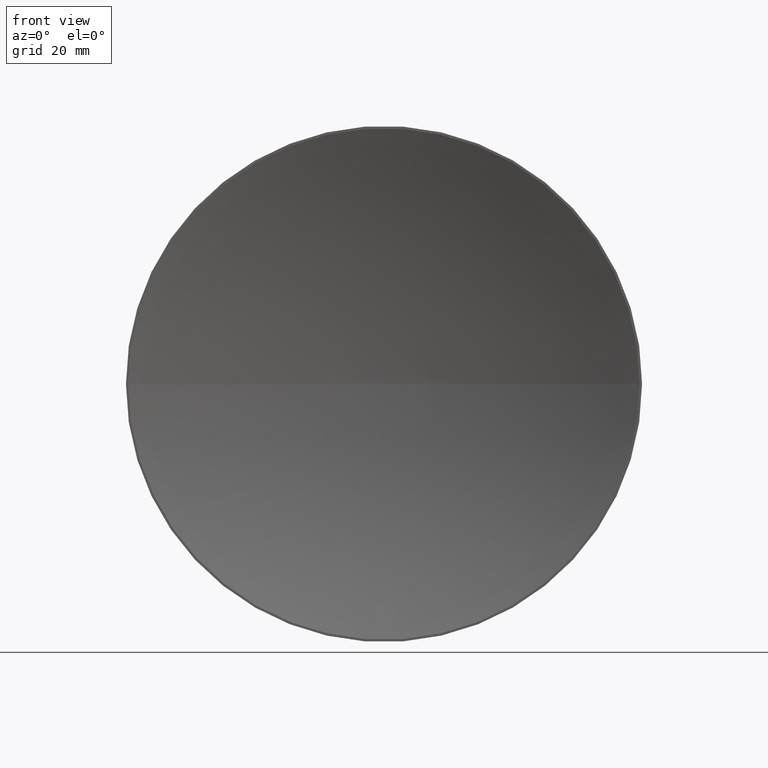
[diagram: clean part render]
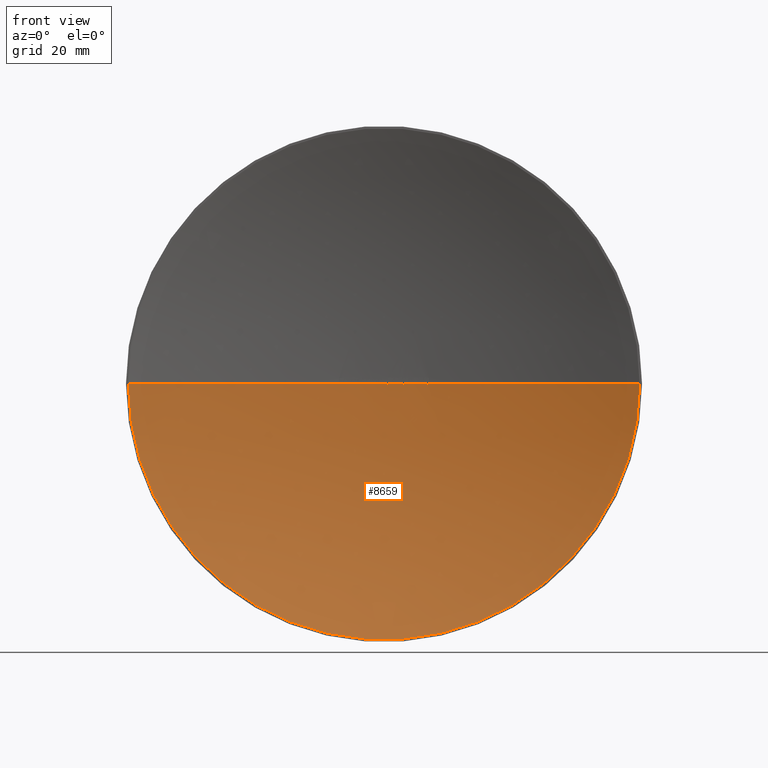
[diagram: same view with one face highlighted and labeled with its STEP entity id]
A machine part, front view. The second image highlights one B-rep face of the part: STEP entity #8659.
In plain terms, the highlighted spherical surface has radius 138.073 mm.
Its self-contained STEP definition (entity closure, byte-faithful):
#18 = EDGE_CURVE ( 'NONE', #8725, #9429, #7078, .T. ) ;
#40 = DIRECTION ( 'NONE',  ( -1.224646799147353200E-016, 1.572626006376126000E-030, -1.000000000000000000 ) ) ;
#72 = EDGE_CURVE ( 'NONE', #10570, #8725, #1821, .T. ) ;
#91 = EDGE_CURVE ( 'NONE', #581, #5924, #8259, .T. ) ;
#129 = CARTESIAN_POINT ( 'NONE',  ( -6.034217247596128400, 9.368079107024890100, -0.01696047008546980300 ) ) ;
#147 = CARTESIAN_POINT ( 'NONE',  ( -7.752102154570927400, 9.282207644704310900, -4.015956613138966300E-007 ) ) ;
#151 = VERTEX_POINT ( 'NONE', #851 ) ;
#155 = ORIENTED_EDGE ( 'NONE', *, *, #7688, .T. ) ;
#156 = EDGE_CURVE ( 'NONE', #562, #4516, #11256, .T. ) ;
#157 = DIRECTION ( 'NONE',  ( 1.000000000000000000, 0.0000000000000000000, 0.0000000000000000000 ) ) ;
#187 = ORIENTED_EDGE ( 'NONE', *, *, #91, .T. ) ;
#254 = DIRECTION ( 'NONE',  ( 0.0000000000000000000, -0.0000000000000000000, 1.000000000000000000 ) ) ;
#289 = CARTESIAN_POINT ( 'NONE',  ( 3.210366465398499500E-014, -128.5731578947367700, 0.0000000000000000000 ) ) ;
#362 = CARTESIAN_POINT ( 'NONE',  ( 3.987755027442126700, 9.442411135812641000, -0.02261620852415193600 ) ) ;
#389 = EDGE_CURVE ( 'NONE', #4809, #10654, #6879, .T. ) ;
#452 = CARTESIAN_POINT ( 'NONE',  ( 3.210366465398499500E-014, -128.5731578947367700, 0.0000000000000000000 ) ) ;
#458 = CARTESIAN_POINT ( 'NONE',  ( -7.563974066267319600, 9.292657634017135800, -0.01529844730456529300 ) ) ;
#485 = CARTESIAN_POINT ( 'NONE',  ( -0.4324919871794671300, 9.499322642501139700, 0.0000000000000000000 ) ) ;
#497 = AXIS2_PLACEMENT_3D ( 'NONE', #3449, #4421, #7080 ) ;
#536 = DIRECTION ( 'NONE',  ( 0.0000000000000000000, 0.0000000000000000000, 1.000000000000000000 ) ) ;
#562 = VERTEX_POINT ( 'NONE', #2130 ) ;
#575 = DIRECTION ( 'NONE',  ( 0.0000000000000000000, -0.0000000000000000000, 1.000000000000000000 ) ) ;
#581 = VERTEX_POINT ( 'NONE', #8273 ) ;
#586 = VERTEX_POINT ( 'NONE', #10116 ) ;
#610 = DIRECTION ( 'NONE',  ( 1.000000000000000000, 0.0000000000000000000, 0.0000000000000000000 ) ) ;
#644 = EDGE_CURVE ( 'NONE', #2306, #3632, #3284, .T. ) ;
#674 = AXIS2_PLACEMENT_3D ( 'NONE', #5874, #9502, #9538 ) ;
#707 = DIRECTION ( 'NONE',  ( 0.0000000000000000000, 0.0000000000000000000, 1.000000000000000000 ) ) ;
#716 = ORIENTED_EDGE ( 'NONE', *, *, #10583, .T. ) ;
#729 = VERTEX_POINT ( 'NONE', #3948 ) ;
#770 = ORIENTED_EDGE ( 'NONE', *, *, #72, .T. ) ;
#799 = ORIENTED_EDGE ( 'NONE', *, *, #11591, .F. ) ;
#813 = CARTESIAN_POINT ( 'NONE',  ( 0.6348561549889223400, 9.498540430880071400, 8.337528731570287300E-006 ) ) ;
#836 = ORIENTED_EDGE ( 'NONE', *, *, #2015, .T. ) ;
#845 = CARTESIAN_POINT ( 'NONE',  ( 3.210366465398499500E-014, -128.5731578947367700, 0.0000000000000000000 ) ) ;
#851 = CARTESIAN_POINT ( 'NONE',  ( 0.9897538563598540200, 9.496452488122402600, -9.316555049733528400E-007 ) ) ;
#973 = DIRECTION ( 'NONE',  ( -1.000000000000000000, 0.0000000000000000000, 1.224646799147353000E-016 ) ) ;
#974 = CARTESIAN_POINT ( 'NONE',  ( 0.6866693541507686800, 9.498294371290372200, -0.01999444933928770000 ) ) ;
#1014 = CARTESIAN_POINT ( 'NONE',  ( 8.557882194845118900, 9.234528511841734400, -0.03392094017094066800 ) ) ;
#1035 = CIRCLE ( 'NONE', #3951, 138.0731578947368000 ) ;
#1041 = CARTESIAN_POINT ( 'NONE',  ( -7.552278559475174900, 9.293299071982328700, -0.01445425385033189400 ) ) ;
#1046 = DIRECTION ( 'NONE',  ( 1.000000000000000000, 0.0000000000000000000, 0.0000000000000000000 ) ) ;
#1058 = CARTESIAN_POINT ( 'NONE',  ( 8.719356925812171300, 9.224410013413482500, 1.996565128283378100E-005 ) ) ;
#1132 = VERTEX_POINT ( 'NONE', #6343 ) ;
#1138 = CARTESIAN_POINT ( 'NONE',  ( 8.498569846958725200, 9.238212067197434200, -0.03291402806252048700 ) ) ;
#1141 = ORIENTED_EDGE ( 'NONE', *, *, #9564, .T. ) ;
#1146 = CARTESIAN_POINT ( 'NONE',  ( -5.984388130692667400, 9.370250514231138100, -0.01493453401163289900 ) ) ;
#1154 = CARTESIAN_POINT ( 'NONE',  ( -6.127819880865971800, 9.363959529696414200, -0.01005600528687014500 ) ) ;
#1217 = CIRCLE ( 'NONE', #9432, 138.0731578947368000 ) ;
#1227 = CARTESIAN_POINT ( 'NONE',  ( -50.33030895990852100, 1.298939427393040000E-012, 0.0000000000000000000 ) ) ;
#1255 = CIRCLE ( 'NONE', #8542, 138.0731578947368000 ) ;
#1266 = DIRECTION ( 'NONE',  ( 0.0000000000000000000, 0.0000000000000000000, 1.000000000000000000 ) ) ;
#1268 = DIRECTION ( 'NONE',  ( 1.000000000000000000, 0.0000000000000000000, 0.0000000000000000000 ) ) ;
#1275 = ORIENTED_EDGE ( 'NONE', *, *, #9890, .T. ) ;
#1339 = VERTEX_POINT ( 'NONE', #10092 ) ;
#1350 = DIRECTION ( 'NONE',  ( -1.000000000000000000, 1.286533071659370900E-014, 0.0000000000000000000 ) ) ;
#1362 = EDGE_CURVE ( 'NONE', #8451, #10570, #10367, .T. ) ;
#1383 = VERTEX_POINT ( 'NONE', #8680 ) ;
#1389 = CIRCLE ( 'NONE', #2295, 138.0731578947368000 ) ;
#1409 = CARTESIAN_POINT ( 'NONE',  ( 0.9605255764499035500, 9.496662036906142700, -0.01174415716274336600 ) ) ;
#1414 = CARTESIAN_POINT ( 'NONE',  ( -2.162459935897420600, 9.483065065514273000, 0.0000000000000000000 ) ) ;
#1418 = CARTESIAN_POINT ( 'NONE',  ( 3.210366465398499500E-014, -128.5731578947367700, 0.0000000000000000000 ) ) ;
#1498 = VERTEX_POINT ( 'NONE', #3716 ) ;
#1526 = EDGE_CURVE ( 'NONE', #3033, #2678, #11066, .T. ) ;
#1530 = AXIS2_PLACEMENT_3D ( 'NONE', #9478, #10375, #3181 ) ;
#1580 = VERTEX_POINT ( 'NONE', #7884 ) ;
#1603 = CARTESIAN_POINT ( 'NONE',  ( -8.912727029914503200, 9.212038073172431400, 1.091494262886109100E-015 ) ) ;
#1621 = VERTEX_POINT ( 'NONE', #7415 ) ;
#1655 = DIRECTION ( 'NONE',  ( 0.0000000000000000000, -0.0000000000000000000, 1.000000000000000000 ) ) ;
#1669 = CARTESIAN_POINT ( 'NONE',  ( 3.210366465398499500E-014, -128.5731578947367700, 0.0000000000000000000 ) ) ;
#1690 = DIRECTION ( 'NONE',  ( 1.000000000000000000, 0.0000000000000000000, 0.0000000000000000000 ) ) ;
#1699 = ORIENTED_EDGE ( 'NONE', *, *, #11376, .T. ) ;
#1706 = AXIS2_PLACEMENT_3D ( 'NONE', #11183, #1266, #3075 ) ;
#1749 = CARTESIAN_POINT ( 'NONE',  ( 0.7712331611661447100, 9.497842885934236500, -0.03272299190448384900 ) ) ;
#1753 = CARTESIAN_POINT ( 'NONE',  ( 3.210366465398499500E-014, -128.5731578947367700, 0.0000000000000000000 ) ) ;
#1785 = CARTESIAN_POINT ( 'NONE',  ( 0.6620927520795484300, 9.498415234083944700, -0.01235842936465236100 ) ) ;
#1817 = CARTESIAN_POINT ( 'NONE',  ( 4.038261278759286200, 9.440933242505623800, 1.975981093890001000E-005 ) ) ;
#1821 = CIRCLE ( 'NONE', #8798, 138.0731578947368000 ) ;
#1831 = AXIS2_PLACEMENT_3D ( 'NONE', #3030, #11223, #5863 ) ;
#1839 = ORIENTED_EDGE ( 'NONE', *, *, #9180, .T. ) ;
#1863 = CARTESIAN_POINT ( 'NONE',  ( 3.210366465398499500E-014, -128.5731578947367700, 0.0000000000000000000 ) ) ;
#1930 = DIRECTION ( 'NONE',  ( 1.000000000000000000, 0.0000000000000000000, 0.0000000000000000000 ) ) ;
#1981 = VERTEX_POINT ( 'NONE', #10922 ) ;
#1984 = ORIENTED_EDGE ( 'NONE', *, *, #7717, .T. ) ;
#1987 = AXIS2_PLACEMENT_3D ( 'NONE', #9188, #3088, #3830 ) ;
#1992 = DIRECTION ( 'NONE',  ( 0.0000000000000000000, -0.0000000000000000000, 1.000000000000000000 ) ) ;
#2007 = DIRECTION ( 'NONE',  ( 0.0000000000000000000, 0.0000000000000000000, 1.000000000000000000 ) ) ;
#2015 = EDGE_CURVE ( 'NONE', #5924, #3110, #4898, .T. ) ;
#2068 = DIRECTION ( 'NONE',  ( 1.000000000000000000, 0.0000000000000000000, 0.0000000000000000000 ) ) ;
#2075 = CARTESIAN_POINT ( 'NONE',  ( -6.005949230924822600, 9.369313307797705500, -0.01613058895710099300 ) ) ;
#2130 = CARTESIAN_POINT ( 'NONE',  ( 0.8021772335737376000, 9.497665569457376800, -0.03392094017094032100 ) ) ;
#2168 = DIRECTION ( 'NONE',  ( 1.000000000000000000, 0.0000000000000000000, 0.0000000000000000000 ) ) ;
#2176 = ORIENTED_EDGE ( 'NONE', *, *, #9909, .T. ) ;
#2228 = DIRECTION ( 'NONE',  ( 0.0000000000000000000, 0.0000000000000000000, 1.000000000000000000 ) ) ;
#2275 = VERTEX_POINT ( 'NONE', #7613 ) ;
#2289 = ORIENTED_EDGE ( 'NONE', *, *, #1362, .T. ) ;
#2295 = AXIS2_PLACEMENT_3D ( 'NONE', #7491, #254, #1268 ) ;
#2306 = VERTEX_POINT ( 'NONE', #6078 ) ;
#2323 = AXIS2_PLACEMENT_3D ( 'NONE', #3350, #9643, #11568 ) ;
#2334 = CARTESIAN_POINT ( 'NONE',  ( 7.844217414529935300, 9.276996926280755700, 7.960567755750419200E-015 ) ) ;
#2383 = ORIENTED_EDGE ( 'NONE', *, *, #2932, .T. ) ;
#2384 = ORIENTED_EDGE ( 'NONE', *, *, #156, .T. ) ;
#2438 = VERTEX_POINT ( 'NONE', #10074 ) ;
#2467 = AXIS2_PLACEMENT_3D ( 'NONE', #8155, #7309, #1930 ) ;
#2481 = EDGE_CURVE ( 'NONE', #1498, #10385, #1389, .T. ) ;
#2507 = DIRECTION ( 'NONE',  ( 1.000000000000000000, 0.0000000000000000000, 0.0000000000000000000 ) ) ;
#2539 = EDGE_CURVE ( 'NONE', #6576, #9548, #4060, .T. ) ;
#2554 = DIRECTION ( 'NONE',  ( -1.224646799147353200E-016, 1.572626006376126000E-030, -1.000000000000000000 ) ) ;
#2598 = AXIS2_PLACEMENT_3D ( 'NONE', #10698, #1655, #1690 ) ;
#2609 = EDGE_CURVE ( 'NONE', #10385, #9449, #11505, .T. ) ;
#2650 = CIRCLE ( 'NONE', #5936, 138.0731578947368000 ) ;
#2651 = AXIS2_PLACEMENT_3D ( 'NONE', #6820, #8716, #10405 ) ;
#2668 = CARTESIAN_POINT ( 'NONE',  ( -5.895863982093485900, 9.374062838815634200, 1.318924922525125200E-006 ) ) ;
#2678 = VERTEX_POINT ( 'NONE', #1603 ) ;
#2687 = AXIS2_PLACEMENT_3D ( 'NONE', #1669, #9705, #3299 ) ;
#2689 = ORIENTED_EDGE ( 'NONE', *, *, #3119, .F. ) ;
#2726 = CIRCLE ( 'NONE', #1706, 138.0731578947368000 ) ;
#2737 = CARTESIAN_POINT ( 'NONE',  ( 8.617782644573035000, 9.230808897205248400, -0.03305112912074877100 ) ) ;
#2761 = AXIS2_PLACEMENT_3D ( 'NONE', #3411, #11633, #4699 ) ;
#2774 = CARTESIAN_POINT ( 'NONE',  ( 0.7312328769856985000, 9.498061585870900100, -0.02844720726549305700 ) ) ;
#2850 = AXIS2_PLACEMENT_3D ( 'NONE', #10764, #40, #9974 ) ;
#2873 = DIRECTION ( 'NONE',  ( 0.0000000000000000000, -0.0000000000000000000, 1.000000000000000000 ) ) ;
#2913 = ORIENTED_EDGE ( 'NONE', *, *, #6304, .T. ) ;
#2932 = EDGE_CURVE ( 'NONE', #586, #10453, #10587, .T. ) ;
#2934 = CARTESIAN_POINT ( 'NONE',  ( 8.447089532391020200, 9.241377337959773900, -0.02277094923147782900 ) ) ;
#2968 = CARTESIAN_POINT ( 'NONE',  ( 3.210366465398499500E-014, -128.5731578947367700, 0.0000000000000000000 ) ) ;
#2984 = CARTESIAN_POINT ( 'NONE',  ( -8.794003739316217100, 9.219666407756593100, 9.514331914480672900E-015 ) ) ;
#3004 = CARTESIAN_POINT ( 'NONE',  ( -6.775707799145283900, 9.333646559740810000, 8.859248776199956800E-015 ) ) ;
#3030 = CARTESIAN_POINT ( 'NONE',  ( 3.210366465398499500E-014, -128.5731578947367700, 0.0000000000000000000 ) ) ;
#3033 = VERTEX_POINT ( 'NONE', #2984 ) ;
#3057 = CIRCLE ( 'NONE', #2850, 138.0731578947368000 ) ;
#3075 = DIRECTION ( 'NONE',  ( 1.000000000000000000, 0.0000000000000000000, 0.0000000000000000000 ) ) ;
#3087 = AXIS2_PLACEMENT_3D ( 'NONE', #1863, #9039, #973 ) ;
#3088 = DIRECTION ( 'NONE',  ( 0.0000000000000000000, 0.0000000000000000000, 1.000000000000000000 ) ) ;
#3091 = DIRECTION ( 'NONE',  ( -1.224646799147353200E-016, 1.572626006376126000E-030, -1.000000000000000000 ) ) ;
#3110 = VERTEX_POINT ( 'NONE', #7769 ) ;
#3117 = CARTESIAN_POINT ( 'NONE',  ( -3.159415685675147400, 9.463854009337957500, -0.01013895166519664100 ) ) ;
#3119 = EDGE_CURVE ( 'NONE', #10292, #1132, #1255, .T. ) ;
#3165 = CARTESIAN_POINT ( 'NONE',  ( -7.583731266015556500, 9.291572132916002100, -0.01623617350801770000 ) ) ;
#3166 = ORIENTED_EDGE ( 'NONE', *, *, #9693, .T. ) ;
#3181 = DIRECTION ( 'NONE',  ( 1.000000000000000000, 0.0000000000000000000, 0.0000000000000000000 ) ) ;
#3204 = CARTESIAN_POINT ( 'NONE',  ( 3.876792451255376200, 9.445559171770636200, -0.03392094017094048800 ) ) ;
#3209 = CARTESIAN_POINT ( 'NONE',  ( 3.210366465398499500E-014, -128.5731578947367700, 0.0000000000000000000 ) ) ;
#3213 = VERTEX_POINT ( 'NONE', #5222 ) ;
#3217 = CARTESIAN_POINT ( 'NONE',  ( 0.8021772335737376000, 9.497665569457376800, -0.03392094017094032100 ) ) ;
#3243 = CARTESIAN_POINT ( 'NONE',  ( 3.210366465398499500E-014, -128.5731578947367700, 0.0000000000000000000 ) ) ;
#3247 = DIRECTION ( 'NONE',  ( 1.000000000000000000, 0.0000000000000000000, 0.0000000000000000000 ) ) ;
#3284 = B_SPLINE_CURVE_WITH_KNOTS ( 'NONE', 3,
 ( #3204, #6810, #10359, #5833 ),
 .UNSPECIFIED., .F., .F.,
 ( 4, 4 ),
 ( 0.0000000000000000000, 0.1789735963335041800 ),
 .UNSPECIFIED. ) ;
#3299 = DIRECTION ( 'NONE',  ( 1.000000000000000000, 0.0000000000000000000, 0.0000000000000000000 ) ) ;
#3306 = CIRCLE ( 'NONE', #8384, 138.0731578947368000 ) ;
#3350 = CARTESIAN_POINT ( 'NONE',  ( 3.210366465398499500E-014, -128.5731578947367700, 0.0000000000000000000 ) ) ;
#3351 = DIRECTION ( 'NONE',  ( -1.000000000000000000, 0.0000000000000000000, 1.224646799147353000E-016 ) ) ;
#3378 = DIRECTION ( 'NONE',  ( 0.0000000000000000000, 0.0000000000000000000, 1.000000000000000000 ) ) ;
#3411 = CARTESIAN_POINT ( 'NONE',  ( -1.219939256851360300E-013, 6.470518565393490500E-013, 0.0000000000000000000 ) ) ;
#3425 = DIRECTION ( 'NONE',  ( 0.0000000000000000000, 0.0000000000000000000, 1.000000000000000000 ) ) ;
#3449 = CARTESIAN_POINT ( 'NONE',  ( 3.210366465398499500E-014, -128.5731578947367700, 0.0000000000000000000 ) ) ;
#3469 = ORIENTED_EDGE ( 'NONE', *, *, #7129, .F. ) ;
#3476 = DIRECTION ( 'NONE',  ( -1.000000000000000000, 0.0000000000000000000, 1.224646799147353000E-016 ) ) ;
#3505 = DIRECTION ( 'NONE',  ( 1.000000000000000000, 0.0000000000000000000, 0.0000000000000000000 ) ) ;
#3540 = ORIENTED_EDGE ( 'NONE', *, *, #7462, .T. ) ;
#3632 = VERTEX_POINT ( 'NONE', #8873 ) ;
#3633 = EDGE_CURVE ( 'NONE', #9429, #4598, #3851, .T. ) ;
#3658 = CARTESIAN_POINT ( 'NONE',  ( -5.130542200854666400, 9.404646362868945200, 1.126493842249712600E-014 ) ) ;
#3690 = VERTEX_POINT ( 'NONE', #1817 ) ;
#3702 = ORIENTED_EDGE ( 'NONE', *, *, #389, .F. ) ;
#3716 = CARTESIAN_POINT ( 'NONE',  ( -1.161792200854691500, 9.495112065840860500, 0.0000000000000000000 ) ) ;
#3735 = FACE_OUTER_BOUND ( 'NONE', #10049, .T. ) ;
#3755 = ORIENTED_EDGE ( 'NONE', *, *, #10357, .T. ) ;
#3762 = ORIENTED_EDGE ( 'NONE', *, *, #18, .T. ) ;
#3768 = CARTESIAN_POINT ( 'NONE',  ( 6.080328525641047800, 9.366055297325440100, 2.672003007809996400E-016 ) ) ;
#3807 = ORIENTED_EDGE ( 'NONE', *, *, #3987, .F. ) ;
#3830 = DIRECTION ( 'NONE',  ( 1.000000000000000000, 0.0000000000000000000, 0.0000000000000000000 ) ) ;
#3851 = B_SPLINE_CURVE_WITH_KNOTS ( 'NONE', 3,
 ( #7314, #9888, #4612, #147 ),
 .UNSPECIFIED., .F., .F.,
 ( 4, 4 ),
 ( 0.0000000000000000000, 0.1802954928831322400 ),
 .UNSPECIFIED. ) ;
#3853 = EDGE_CURVE ( 'NONE', #10126, #4121, #2650, .T. ) ;
#3854 = CARTESIAN_POINT ( 'NONE',  ( -6.018965418132287600, 9.368746339324745900, -0.01660691845807762300 ) ) ;
#3865 = CARTESIAN_POINT ( 'NONE',  ( -3.066134982638874600, 9.465950547891214500, -0.01696047008546966400 ) ) ;
#3868 = DIRECTION ( 'NONE',  ( 1.000000000000000000, 0.0000000000000000000, 0.0000000000000000000 ) ) ;
#3881 = SPHERICAL_SURFACE ( 'NONE', #4407, 138.0731578947368000 ) ;
#3883 = CARTESIAN_POINT ( 'NONE',  ( -7.612335987580101100, 9.289995210723434500, -0.01696047008547008400 ) ) ;
#3936 = CARTESIAN_POINT ( 'NONE',  ( -0.3137686965811685700, 9.499643482761028300, 4.246473147903765400E-015 ) ) ;
#3948 = CARTESIAN_POINT ( 'NONE',  ( 1.796710865618545600E-012, 9.500000000000008900, 0.0000000000000000000 ) ) ;
#3951 = AXIS2_PLACEMENT_3D ( 'NONE', #2968, #9230, #11324 ) ;
#3966 = AXIS2_PLACEMENT_3D ( 'NONE', #11420, #8701, #3351 ) ;
#3987 = EDGE_CURVE ( 'NONE', #8505, #1339, #5242, .T. ) ;
#4005 = CARTESIAN_POINT ( 'NONE',  ( 0.8354492868639421500, 9.497472336367756900, -0.03361930166225579600 ) ) ;
#4060 = CIRCLE ( 'NONE', #8290, 138.0731578947368000 ) ;
#4121 = VERTEX_POINT ( 'NONE', #7685 ) ;
#4158 = CIRCLE ( 'NONE', #2323, 138.0731578947368000 ) ;
#4193 = ORIENTED_EDGE ( 'NONE', *, *, #9088, .T. ) ;
#4245 = AXIS2_PLACEMENT_3D ( 'NONE', #9307, #3091, #6699 ) ;
#4276 = CARTESIAN_POINT ( 'NONE',  ( -7.752102154570927400, 9.282207644704310900, -4.015956613138966300E-007 ) ) ;
#4286 = ORIENTED_EDGE ( 'NONE', *, *, #11559, .F. ) ;
#4377 = VERTEX_POINT ( 'NONE', #5609 ) ;
#4381 = AXIS2_PLACEMENT_3D ( 'NONE', #3243, #536, #9541 ) ;
#4394 = CARTESIAN_POINT ( 'NONE',  ( -2.973112714128669100, 9.467988063381307400, -0.01009498902420191700 ) ) ;
#4407 = AXIS2_PLACEMENT_3D ( 'NONE', #452, #6687, #1350 ) ;
#4421 = DIRECTION ( 'NONE',  ( -1.224646799147353200E-016, 1.572626006376126000E-030, -1.000000000000000000 ) ) ;
#4431 = CARTESIAN_POINT ( 'NONE',  ( -2.950412524126279700, 9.468475346596191500, -0.005830948708539810900 ) ) ;
#4463 = DIRECTION ( 'NONE',  ( 0.0000000000000000000, 0.0000000000000000000, 1.000000000000000000 ) ) ;
#4469 = DIRECTION ( 'NONE',  ( 0.0000000000000000000, 0.0000000000000000000, 1.000000000000000000 ) ) ;
#4516 = VERTEX_POINT ( 'NONE', #11091 ) ;
#4519 = CARTESIAN_POINT ( 'NONE',  ( -3.199801354512912300, 9.462917789651358500, -1.162726198257053200E-006 ) ) ;
#4543 = CIRCLE ( 'NONE', #5294, 138.0731578947368000 ) ;
#4578 = CIRCLE ( 'NONE', #7555, 138.0731578947368000 ) ;
#4598 = VERTEX_POINT ( 'NONE', #4276 ) ;
#4600 = DIRECTION ( 'NONE',  ( -1.224646799147353200E-016, 1.572626006376126000E-030, -1.000000000000000000 ) ) ;
#4608 = VERTEX_POINT ( 'NONE', #11405 ) ;
#4612 = CARTESIAN_POINT ( 'NONE',  ( -7.710956778670022200, 9.284521524547768600, -0.01015994591150703700 ) ) ;
#4636 = CARTESIAN_POINT ( 'NONE',  ( -5.941276611685097500, 9.372116061977605400, -0.01010584923291609800 ) ) ;
#4663 = ORIENTED_EDGE ( 'NONE', *, *, #8057, .T. ) ;
#4690 = EDGE_CURVE ( 'NONE', #1383, #8451, #6795, .T. ) ;
#4693 = B_SPLINE_CURVE_WITH_KNOTS ( 'NONE', 3,
 ( #2668, #8935, #4636, #10104, #1146, #2075, #3854, #129 ),
 .UNSPECIFIED., .F., .F.,
 ( 4, 2, 2, 4 ),
 ( 0.6915284098000482600, 0.8457642049000272400, 0.9228821024500135600, 1.000000000000000000 ),
 .UNSPECIFIED. ) ;
#4699 = DIRECTION ( 'NONE',  ( 1.000000000000000000, -1.284146586159413200E-014, 0.0000000000000000000 ) ) ;
#4739 = CARTESIAN_POINT ( 'NONE',  ( 8.397066891077109600, 9.244425127049202800, 8.632900871727483000E-006 ) ) ;
#4772 = B_SPLINE_CURVE_WITH_KNOTS ( 'NONE', 3,
 ( #9366, #362, #8500, #6634 ),
 .UNSPECIFIED., .F., .F.,
 ( 4, 4 ),
 ( 0.8210371713017444700, 1.000000000000000000 ),
 .UNSPECIFIED. ) ;
#4785 = CARTESIAN_POINT ( 'NONE',  ( -4.469083867521331600, 9.427654495661769800, 1.126681687824239800E-014 ) ) ;
#4809 = VERTEX_POINT ( 'NONE', #6531 ) ;
#4897 = CARTESIAN_POINT ( 'NONE',  ( 3.210366465398499500E-014, -128.5731578947367700, 0.0000000000000000000 ) ) ;
#4898 = CIRCLE ( 'NONE', #2598, 138.0731578947368000 ) ;
#4906 = DIRECTION ( 'NONE',  ( 0.0000000000000000000, -0.0000000000000000000, 1.000000000000000000 ) ) ;
#4955 = CIRCLE ( 'NONE', #6058, 138.0731578947368000 ) ;
#4989 = DIRECTION ( 'NONE',  ( 1.000000000000000000, 0.0000000000000000000, 0.0000000000000000000 ) ) ;
#5001 = ORIENTED_EDGE ( 'NONE', *, *, #11058, .T. ) ;
#5118 = EDGE_CURVE ( 'NONE', #11378, #1132, #10014, .T. ) ;
#5222 = CARTESIAN_POINT ( 'NONE',  ( -2.927812256167765100, 9.468954649196263100, -2.533748141339901600E-006 ) ) ;
#5242 = CIRCLE ( 'NONE', #4245, 138.0731578947368000 ) ;
#5252 = CARTESIAN_POINT ( 'NONE',  ( 3.210366465398499500E-014, -128.5731578947367700, 0.0000000000000000000 ) ) ;
#5294 = AXIS2_PLACEMENT_3D ( 'NONE', #1418, #4906, #4989 ) ;
#5374 = CARTESIAN_POINT ( 'NONE',  ( 3.210366465398499500E-014, -128.5731578947367700, 0.0000000000000000000 ) ) ;
#5399 = CIRCLE ( 'NONE', #9600, 138.0731578947368000 ) ;
#5409 = EDGE_CURVE ( 'NONE', #8936, #8999, #7638, .T. ) ;
#5414 = CIRCLE ( 'NONE', #3966, 138.0731578947368000 ) ;
#5480 = EDGE_CURVE ( 'NONE', #3690, #4377, #10439, .T. ) ;
#5490 = ORIENTED_EDGE ( 'NONE', *, *, #11260, .T. ) ;
#5507 = CARTESIAN_POINT ( 'NONE',  ( 3.210366465398499500E-014, -128.5731578947367700, 0.0000000000000000000 ) ) ;
#5515 = CARTESIAN_POINT ( 'NONE',  ( -7.516448717209145000, 9.295257536192261600, -0.009963078542728260100 ) ) ;
#5609 = CARTESIAN_POINT ( 'NONE',  ( 4.859174679487204600, 9.414469639253200100, -2.975386358864832800E-016 ) ) ;
#5631 = VERTEX_POINT ( 'NONE', #485 ) ;
#5657 = CARTESIAN_POINT ( 'NONE',  ( -3.114837191300058500, 9.464868933240111900, -0.01563836095586781600 ) ) ;
#5697 = CARTESIAN_POINT ( 'NONE',  ( -3.199801354512912300, 9.462917789651358500, -1.162726198257053200E-006 ) ) ;
#5725 = CARTESIAN_POINT ( 'NONE',  ( 8.557882194845118900, 9.234528511841734400, -0.03392094017094066800 ) ) ;
#5833 = CARTESIAN_POINT ( 'NONE',  ( 3.715973809242003200, 9.449986762124471100, 9.336367655521580200E-006 ) ) ;
#5842 = CIRCLE ( 'NONE', #11164, 138.0731578947368000 ) ;
#5853 = AXIS2_PLACEMENT_3D ( 'NONE', #289, #2007, #3868 ) ;
#5861 = B_SPLINE_CURVE_WITH_KNOTS ( 'NONE', 3,
 ( #3865, #5657, #3117, #5697 ),
 .UNSPECIFIED., .F., .F.,
 ( 4, 4 ),
 ( 0.0000000000000000000, 0.1699217123000166300 ),
 .UNSPECIFIED. ) ;
#5862 = EDGE_CURVE ( 'NONE', #5631, #1981, #4543, .T. ) ;
#5863 = DIRECTION ( 'NONE',  ( 1.000000000000000000, 0.0000000000000000000, 0.0000000000000000000 ) ) ;
#5874 = CARTESIAN_POINT ( 'NONE',  ( 3.210366465398499500E-014, -128.5731578947367700, 0.0000000000000000000 ) ) ;
#5924 = VERTEX_POINT ( 'NONE', #9486 ) ;
#5936 = AXIS2_PLACEMENT_3D ( 'NONE', #3209, #8522, #3247 ) ;
#5966 = ORIENTED_EDGE ( 'NONE', *, *, #9928, .T. ) ;
#6058 = AXIS2_PLACEMENT_3D ( 'NONE', #5507, #2873, #10034 ) ;
#6078 = CARTESIAN_POINT ( 'NONE',  ( 3.876792451255376200, 9.445559171770636200, -0.03392094017094048800 ) ) ;
#6086 = DIRECTION ( 'NONE',  ( 0.0000000000000000000, -0.0000000000000000000, 1.000000000000000000 ) ) ;
#6087 = CARTESIAN_POINT ( 'NONE',  ( -3.926348824786285900, 9.444162452859492500, 2.404195260306345500E-016 ) ) ;
#6117 = CARTESIAN_POINT ( 'NONE',  ( -3.037854575184438100, 9.466576337830684200, -0.01612958766156461600 ) ) ;
#6149 = EDGE_CURVE ( 'NONE', #1981, #1498, #9863, .T. ) ;
#6151 = CARTESIAN_POINT ( 'NONE',  ( -3.016300617320269800, 9.467049128951883200, -0.01493400664260827400 ) ) ;
#6206 = ORIENTED_EDGE ( 'NONE', *, *, #2481, .T. ) ;
#6292 = DIRECTION ( 'NONE',  ( 1.000000000000000000, 0.0000000000000000000, 0.0000000000000000000 ) ) ;
#6304 = EDGE_CURVE ( 'NONE', #1621, #2275, #1035, .T. ) ;
#6343 = CARTESIAN_POINT ( 'NONE',  ( 2.823918269230794000, 9.471119120406518400, -1.729151234732509500E-016 ) ) ;
#6412 = CARTESIAN_POINT ( 'NONE',  ( -7.528310214507168800, 9.294610218370150900, -0.01173653690334237500 ) ) ;
#6471 = DIRECTION ( 'NONE',  ( 1.000000000000000000, 0.0000000000000000000, 0.0000000000000000000 ) ) ;
#6495 = CARTESIAN_POINT ( 'NONE',  ( -6.894431089743564600, 9.327762156485855300, 4.221621482999321700E-016 ) ) ;
#6499 = B_SPLINE_CURVE_WITH_KNOTS ( 'NONE', 3,
 ( #6784, #1409, #6749, #8494, #4005, #3217 ),
 .UNSPECIFIED., .F., .F.,
 ( 4, 2, 4 ),
 ( 0.7374105300553771600, 0.8687052650276885200, 1.000000000000000000 ),
 .UNSPECIFIED. ) ;
#6525 = CIRCLE ( 'NONE', #9745, 138.0731578947368000 ) ;
#6531 = CARTESIAN_POINT ( 'NONE',  ( 6.979233440170966100, 9.323496276466780600, 1.125831307625960000E-014 ) ) ;
#6576 = VERTEX_POINT ( 'NONE', #4519 ) ;
#6603 = CARTESIAN_POINT ( 'NONE',  ( 3.210366465398499500E-014, -128.5731578947367700, 0.0000000000000000000 ) ) ;
#6634 = CARTESIAN_POINT ( 'NONE',  ( 3.876792451255376200, 9.445559171770636200, -0.03392094017094048800 ) ) ;
#6687 = DIRECTION ( 'NONE',  ( 0.0000000000000000000, 0.0000000000000000000, -1.000000000000000000 ) ) ;
#6689 = DIRECTION ( 'NONE',  ( 0.0000000000000000000, -0.0000000000000000000, 1.000000000000000000 ) ) ;
#6695 = CIRCLE ( 'NONE', #7696, 138.0731578947368000 ) ;
#6699 = DIRECTION ( 'NONE',  ( -1.000000000000000000, 0.0000000000000000000, 1.224646799147353000E-016 ) ) ;
#6749 = CARTESIAN_POINT ( 'NONE',  ( 0.9287024839453351700, 9.496878716710861900, -0.02055956283533653900 ) ) ;
#6784 = CARTESIAN_POINT ( 'NONE',  ( 0.9897538563598540200, 9.496452488122402600, -9.316555049733528400E-007 ) ) ;
#6795 = CIRCLE ( 'NONE', #10389, 138.0731578947368000 ) ;
#6810 = CARTESIAN_POINT ( 'NONE',  ( 3.817147818215522700, 9.447234772115265900, -0.03290838704582742900 ) ) ;
#6820 = CARTESIAN_POINT ( 'NONE',  ( 3.210366465398499500E-014, -128.5731578947367700, 0.0000000000000000000 ) ) ;
#6879 = CIRCLE ( 'NONE', #10537, 138.0731578947368000 ) ;
#6982 = CARTESIAN_POINT ( 'NONE',  ( 3.210366465398499500E-014, -128.5731578947367700, 0.0000000000000000000 ) ) ;
#7052 = CARTESIAN_POINT ( 'NONE',  ( -2.927812256167765100, 9.468954649196263100, -2.533748141339901600E-006 ) ) ;
#7064 = B_SPLINE_CURVE_WITH_KNOTS ( 'NONE', 3,
 ( #5725, #1138, #2934, #4739 ),
 .UNSPECIFIED., .F., .F.,
 ( 4, 4 ),
 ( 0.0000000000000000000, 0.1793633120295122200 ),
 .UNSPECIFIED. ) ;
#7078 = B_SPLINE_CURVE_WITH_KNOTS ( 'NONE', 3,
 ( #7234, #9770, #8869, #5515, #6412, #1041, #458, #3165, #7499, #7621 ),
 .UNSPECIFIED., .F., .F.,
 ( 4, 2, 2, 2, 4 ),
 ( 0.7370618382037799100, 0.8027963786528349300, 0.8685309191018899500, 0.9342654595509449800, 1.000000000000000000 ),
 .UNSPECIFIED. ) ;
#7080 = DIRECTION ( 'NONE',  ( -1.000000000000000000, 0.0000000000000000000, 1.224646799147353000E-016 ) ) ;
#7129 = EDGE_CURVE ( 'NONE', #11378, #3632, #7333, .T. ) ;
#7149 = EDGE_CURVE ( 'NONE', #2438, #10126, #4955, .T. ) ;
#7167 = CARTESIAN_POINT ( 'NONE',  ( 3.210366465398499500E-014, -128.5731578947367700, 0.0000000000000000000 ) ) ;
#7168 = CARTESIAN_POINT ( 'NONE',  ( 8.668853815875307200, 9.227605768694425900, -0.02261381107914761000 ) ) ;
#7177 = CARTESIAN_POINT ( 'NONE',  ( 2.942641559829071200, 9.468639368538825700, 8.272437429986897500E-015 ) ) ;
#7234 = CARTESIAN_POINT ( 'NONE',  ( -7.469787680636183100, 9.297793309297881900, 2.539320210174395000E-006 ) ) ;
#7240 = CARTESIAN_POINT ( 'NONE',  ( 8.557882194845118900, 9.234528511841734400, -0.03392094017094066800 ) ) ;
#7243 = CIRCLE ( 'NONE', #1987, 138.0731578947368000 ) ;
#7309 = DIRECTION ( 'NONE',  ( 0.0000000000000000000, 0.0000000000000000000, 1.000000000000000000 ) ) ;
#7314 = CARTESIAN_POINT ( 'NONE',  ( -7.612335987580101100, 9.289995210723434500, -0.01696047008547008400 ) ) ;
#7332 = ORIENTED_EDGE ( 'NONE', *, *, #644, .T. ) ;
#7333 = CIRCLE ( 'NONE', #8445, 138.0731578947368000 ) ;
#7337 = CARTESIAN_POINT ( 'NONE',  ( -3.807625534187998500, 9.447488817326959800, 1.126843621414510100E-014 ) ) ;
#7341 = CIRCLE ( 'NONE', #2467, 138.0731578947368000 ) ;
#7410 = CARTESIAN_POINT ( 'NONE',  ( -6.167890069436236200, 9.362167715026986400, -6.547281749418822200E-008 ) ) ;
#7415 = CARTESIAN_POINT ( 'NONE',  ( -2.281183226495711500, 9.481154367184496200, 0.0000000000000000000 ) ) ;
#7462 = EDGE_CURVE ( 'NONE', #9449, #10294, #11177, .T. ) ;
#7491 = CARTESIAN_POINT ( 'NONE',  ( 3.210366465398499500E-014, -128.5731578947367700, 0.0000000000000000000 ) ) ;
#7492 = CIRCLE ( 'NONE', #2761, 50.33030895991019100 ) ;
#7498 = VERTEX_POINT ( 'NONE', #1227 ) ;
#7499 = CARTESIAN_POINT ( 'NONE',  ( -7.596559073933926600, 9.290866398594859600, -0.01663386451844960100 ) ) ;
#7547 = VERTEX_POINT ( 'NONE', #3936 ) ;
#7555 = AXIS2_PLACEMENT_3D ( 'NONE', #4897, #2228, #9319 ) ;
#7590 = CARTESIAN_POINT ( 'NONE',  ( -1.551883012820502800, 9.491278475167813900, 0.0000000000000000000 ) ) ;
#7613 = CARTESIAN_POINT ( 'NONE',  ( -2.552550747863235000, 9.476403552246798900, 0.0000000000000000000 ) ) ;
#7621 = CARTESIAN_POINT ( 'NONE',  ( -7.612335987580101100, 9.289995210723434500, -0.01696047008547008400 ) ) ;
#7638 = CIRCLE ( 'NONE', #1530, 138.0731578947368000 ) ;
#7642 = ORIENTED_EDGE ( 'NONE', *, *, #5118, .T. ) ;
#7650 = CARTESIAN_POINT ( 'NONE',  ( -7.469787680636183100, 9.297793309297881900, 2.539320210174395000E-006 ) ) ;
#7685 = CARTESIAN_POINT ( 'NONE',  ( -5.249265491452951500, 9.400180626968762000, 0.0000000000000000000 ) ) ;
#7688 = EDGE_CURVE ( 'NONE', #3213, #10100, #8787, .T. ) ;
#7695 = CARTESIAN_POINT ( 'NONE',  ( 3.210366465398499500E-014, -128.5731578947367700, 0.0000000000000000000 ) ) ;
#7696 = AXIS2_PLACEMENT_3D ( 'NONE', #7167, #4469, #157 ) ;
#7717 = EDGE_CURVE ( 'NONE', #8999, #2438, #1217, .T. ) ;
#7732 = ORIENTED_EDGE ( 'NONE', *, *, #5409, .T. ) ;
#7760 = CIRCLE ( 'NONE', #9678, 138.0731578947368000 ) ;
#7769 = CARTESIAN_POINT ( 'NONE',  ( -5.895863982093485900, 9.374062838815634200, 1.318924922525125200E-006 ) ) ;
#7839 = VERTEX_POINT ( 'NONE', #8215 ) ;
#7878 = EDGE_CURVE ( 'NONE', #7839, #4377, #6695, .T. ) ;
#7884 = CARTESIAN_POINT ( 'NONE',  ( 2.026776175213708300, 9.485123672724803600, -1.241042477780684500E-016 ) ) ;
#7901 = ORIENTED_EDGE ( 'NONE', *, *, #4690, .T. ) ;
#8014 = EDGE_CURVE ( 'NONE', #10453, #1339, #7064, .T. ) ;
#8018 = DIRECTION ( 'NONE',  ( 0.0000000000000000000, 0.0000000000000000000, 1.000000000000000000 ) ) ;
#8057 = EDGE_CURVE ( 'NONE', #4809, #9396, #4578, .T. ) ;
#8103 = EDGE_CURVE ( 'NONE', #151, #562, #6499, .T. ) ;
#8155 = CARTESIAN_POINT ( 'NONE',  ( 3.210366465398499500E-014, -128.5731578947367700, 0.0000000000000000000 ) ) ;
#8180 = CARTESIAN_POINT ( 'NONE',  ( -2.671274038461522300, 9.474157276679552100, 1.635683600424763800E-016 ) ) ;
#8215 = CARTESIAN_POINT ( 'NONE',  ( 4.977897970085495100, 9.410237710764739900, 8.144237847410764000E-015 ) ) ;
#8230 = CARTESIAN_POINT ( 'NONE',  ( -6.034217247596128400, 9.368079107024890100, -0.01696047008546980300 ) ) ;
#8259 = CIRCLE ( 'NONE', #4381, 138.0731578947368000 ) ;
#8273 = CARTESIAN_POINT ( 'NONE',  ( -5.520633012820487000, 9.389589041393289600, 1.126370909579386500E-014 ) ) ;
#8290 = AXIS2_PLACEMENT_3D ( 'NONE', #8308, #6689, #2168 ) ;
#8308 = CARTESIAN_POINT ( 'NONE',  ( 3.210366465398499500E-014, -128.5731578947367700, 0.0000000000000000000 ) ) ;
#8345 = CARTESIAN_POINT ( 'NONE',  ( -6.083250502814038000, 9.365934318818268900, -0.01562937410112522400 ) ) ;
#8384 = AXIS2_PLACEMENT_3D ( 'NONE', #8740, #6086, #2507 ) ;
#8418 = ORIENTED_EDGE ( 'NONE', *, *, #7878, .T. ) ;
#8445 = AXIS2_PLACEMENT_3D ( 'NONE', #9993, #4600, #9953 ) ;
#8451 = VERTEX_POINT ( 'NONE', #3004 ) ;
#8455 = ORIENTED_EDGE ( 'NONE', *, *, #3633, .T. ) ;
#8469 = EDGE_CURVE ( 'NONE', #7547, #5631, #7243, .T. ) ;
#8494 = CARTESIAN_POINT ( 'NONE',  ( 0.8666963059927381700, 9.497279857742331200, -0.03126080249325190200 ) ) ;
#8500 = CARTESIAN_POINT ( 'NONE',  ( 3.936410561952250900, 9.443884778031296900, -0.03305522894988342100 ) ) ;
#8505 = VERTEX_POINT ( 'NONE', #2334 ) ;
#8521 = AXIS2_PLACEMENT_3D ( 'NONE', #5252, #4463, #11631 ) ;
#8522 = DIRECTION ( 'NONE',  ( 0.0000000000000000000, 0.0000000000000000000, 1.000000000000000000 ) ) ;
#8542 = AXIS2_PLACEMENT_3D ( 'NONE', #8859, #2554, #3476 ) ;
#8620 = CIRCLE ( 'NONE', #10954, 138.0731578947368000 ) ;
#8624 = ORIENTED_EDGE ( 'NONE', *, *, #9381, .T. ) ;
#8643 = CARTESIAN_POINT ( 'NONE',  ( 3.210366465398499500E-014, -128.5731578947367700, 0.0000000000000000000 ) ) ;
#8654 = EDGE_CURVE ( 'NONE', #10100, #6576, #5861, .T. ) ;
#8659 = ADVANCED_FACE ( 'NONE', ( #3735 ), #3881, .F. ) ;
#8680 = CARTESIAN_POINT ( 'NONE',  ( -6.167890069436236200, 9.362167715026986400, -6.547281749418822200E-008 ) ) ;
#8682 = DIRECTION ( 'NONE',  ( -1.224646799147353200E-016, 1.572626006376126000E-030, -1.000000000000000000 ) ) ;
#8701 = DIRECTION ( 'NONE',  ( -1.224646799147353200E-016, 1.572626006376126000E-030, -1.000000000000000000 ) ) ;
#8716 = DIRECTION ( 'NONE',  ( 0.0000000000000000000, 0.0000000000000000000, 1.000000000000000000 ) ) ;
#8725 = VERTEX_POINT ( 'NONE', #7650 ) ;
#8740 = CARTESIAN_POINT ( 'NONE',  ( 3.210366465398499500E-014, -128.5731578947367700, 0.0000000000000000000 ) ) ;
#8782 = ORIENTED_EDGE ( 'NONE', *, *, #8103, .T. ) ;
#8787 = B_SPLINE_CURVE_WITH_KNOTS ( 'NONE', 3,
 ( #7052, #4431, #4394, #11453, #6151, #6117, #11561, #10640 ),
 .UNSPECIFIED., .F., .F.,
 ( 4, 2, 2, 4 ),
 ( 0.6916504607190835400, 0.8458252303595401600, 0.9229126151797700800, 1.000000000000000000 ),
 .UNSPECIFIED. ) ;
#8798 = AXIS2_PLACEMENT_3D ( 'NONE', #7695, #575, #610 ) ;
#8811 = ORIENTED_EDGE ( 'NONE', *, *, #7149, .T. ) ;
#8859 = CARTESIAN_POINT ( 'NONE',  ( 3.210366465398499500E-014, -128.5731578947367700, 0.0000000000000000000 ) ) ;
#8869 = CARTESIAN_POINT ( 'NONE',  ( -7.492969320949938200, 9.296535850589590300, -0.005598376555326571600 ) ) ;
#8873 = CARTESIAN_POINT ( 'NONE',  ( 3.715973809242003200, 9.449986762124471100, 9.336367655521580200E-006 ) ) ;
#8903 = ORIENTED_EDGE ( 'NONE', *, *, #8915, .F. ) ;
#8915 = EDGE_CURVE ( 'NONE', #729, #4516, #5414, .T. ) ;
#8935 = CARTESIAN_POINT ( 'NONE',  ( -5.918259722338727400, 9.373105684181627600, -0.005779919925433967900 ) ) ;
#8936 = VERTEX_POINT ( 'NONE', #6087 ) ;
#8951 = DIRECTION ( 'NONE',  ( 0.0000000000000000000, -0.0000000000000000000, 1.000000000000000000 ) ) ;
#8960 = CARTESIAN_POINT ( 'NONE',  ( 0.7862021092755818700, 9.497758461245496200, -0.03360359443375247900 ) ) ;
#8999 = VERTEX_POINT ( 'NONE', #4785 ) ;
#9030 = DIRECTION ( 'NONE',  ( 0.0000000000000000000, 0.0000000000000000000, 1.000000000000000000 ) ) ;
#9035 = ORIENTED_EDGE ( 'NONE', *, *, #5862, .T. ) ;
#9039 = DIRECTION ( 'NONE',  ( -1.224646799147353200E-016, 1.572626006376126000E-030, -1.000000000000000000 ) ) ;
#9088 = EDGE_CURVE ( 'NONE', #4121, #581, #5842, .T. ) ;
#9116 = ORIENTED_EDGE ( 'NONE', *, *, #3853, .T. ) ;
#9171 = VERTEX_POINT ( 'NONE', #11094 ) ;
#9180 = EDGE_CURVE ( 'NONE', #3690, #2306, #4772, .T. ) ;
#9185 = ORIENTED_EDGE ( 'NONE', *, *, #8469, .T. ) ;
#9188 = CARTESIAN_POINT ( 'NONE',  ( 3.210366465398499500E-014, -128.5731578947367700, 0.0000000000000000000 ) ) ;
#9192 = CARTESIAN_POINT ( 'NONE',  ( 3.210366465398499500E-014, -128.5731578947367700, 0.0000000000000000000 ) ) ;
#9230 = DIRECTION ( 'NONE',  ( 0.0000000000000000000, -0.0000000000000000000, 1.000000000000000000 ) ) ;
#9260 = ORIENTED_EDGE ( 'NONE', *, *, #2609, .T. ) ;
#9307 = CARTESIAN_POINT ( 'NONE',  ( 3.210366465398499500E-014, -128.5731578947367700, 0.0000000000000000000 ) ) ;
#9319 = DIRECTION ( 'NONE',  ( 1.000000000000000000, 0.0000000000000000000, 0.0000000000000000000 ) ) ;
#9358 = CIRCLE ( 'NONE', #3087, 138.0731578947368000 ) ;
#9366 = CARTESIAN_POINT ( 'NONE',  ( 4.038261278759286200, 9.440933242505623800, 1.975981093890001000E-005 ) ) ;
#9381 = EDGE_CURVE ( 'NONE', #7498, #9171, #7492, .T. ) ;
#9396 = VERTEX_POINT ( 'NONE', #3768 ) ;
#9429 = VERTEX_POINT ( 'NONE', #3883 ) ;
#9432 = AXIS2_PLACEMENT_3D ( 'NONE', #6982, #707, #10681 ) ;
#9443 = CARTESIAN_POINT ( 'NONE',  ( 2.145499465811985900, 9.483329685771785500, 8.322147828180965000E-015 ) ) ;
#9449 = VERTEX_POINT ( 'NONE', #7590 ) ;
#9478 = CARTESIAN_POINT ( 'NONE',  ( 3.210366465398499500E-014, -128.5731578947367700, 0.0000000000000000000 ) ) ;
#9486 = CARTESIAN_POINT ( 'NONE',  ( -5.639356303418773900, 9.384787115719230900, 3.453109823117725700E-016 ) ) ;
#9502 = DIRECTION ( 'NONE',  ( 0.0000000000000000000, 0.0000000000000000000, 1.000000000000000000 ) ) ;
#9538 = DIRECTION ( 'NONE',  ( 1.000000000000000000, 0.0000000000000000000, 0.0000000000000000000 ) ) ;
#9541 = DIRECTION ( 'NONE',  ( 1.000000000000000000, 0.0000000000000000000, 0.0000000000000000000 ) ) ;
#9548 = VERTEX_POINT ( 'NONE', #7337 ) ;
#9560 = EDGE_CURVE ( 'NONE', #10107, #3213, #5399, .T. ) ;
#9564 = EDGE_CURVE ( 'NONE', #4608, #1383, #9787, .T. ) ;
#9568 = ORIENTED_EDGE ( 'NONE', *, *, #9814, .F. ) ;
#9569 = DIRECTION ( 'NONE',  ( -1.000000000000000000, 0.0000000000000000000, 1.224646799147353000E-016 ) ) ;
#9600 = AXIS2_PLACEMENT_3D ( 'NONE', #6603, #10153, #10982 ) ;
#9639 = ORIENTED_EDGE ( 'NONE', *, *, #5480, .F. ) ;
#9643 = DIRECTION ( 'NONE',  ( 0.0000000000000000000, -0.0000000000000000000, 1.000000000000000000 ) ) ;
#9674 = DIRECTION ( 'NONE',  ( 1.000000000000000000, 0.0000000000000000000, 0.0000000000000000000 ) ) ;
#9678 = AXIS2_PLACEMENT_3D ( 'NONE', #9192, #9030, #1046 ) ;
#9693 = EDGE_CURVE ( 'NONE', #10294, #1621, #2726, .T. ) ;
#9699 = ORIENTED_EDGE ( 'NONE', *, *, #9560, .T. ) ;
#9705 = DIRECTION ( 'NONE',  ( 0.0000000000000000000, -0.0000000000000000000, 1.000000000000000000 ) ) ;
#9745 = AXIS2_PLACEMENT_3D ( 'NONE', #10469, #11419, #9569 ) ;
#9770 = CARTESIAN_POINT ( 'NONE',  ( -7.480139007209988500, 9.297232541121003300, -0.002699982521510622500 ) ) ;
#9782 = CARTESIAN_POINT ( 'NONE',  ( 0.8021772335737376000, 9.497665569457376800, -0.03392094017094032100 ) ) ;
#9787 = B_SPLINE_CURVE_WITH_KNOTS ( 'NONE', 3,
 ( #8230, #8345, #1154, #7410 ),
 .UNSPECIFIED., .F., .F.,
 ( 4, 4 ),
 ( 0.0000000000000000000, 0.1699215152870901000 ),
 .UNSPECIFIED. ) ;
#9814 = EDGE_CURVE ( 'NONE', #151, #1580, #6525, .T. ) ;
#9857 = CARTESIAN_POINT ( 'NONE',  ( 0.7432967221525990100, 9.497996718831570800, -0.03002695585908890500 ) ) ;
#9863 = CIRCLE ( 'NONE', #8521, 138.0731578947368000 ) ;
#9871 = CARTESIAN_POINT ( 'NONE',  ( -3.066134982638874600, 9.465950547891214500, -0.01696047008546966400 ) ) ;
#9888 = CARTESIAN_POINT ( 'NONE',  ( -7.664358592575203100, 9.287122848224083100, -0.01574604895802381200 ) ) ;
#9890 = EDGE_CURVE ( 'NONE', #4598, #3033, #3306, .T. ) ;
#9908 = CIRCLE ( 'NONE', #674, 138.0731578947368000 ) ;
#9909 = EDGE_CURVE ( 'NONE', #729, #7547, #4158, .T. ) ;
#9928 = EDGE_CURVE ( 'NONE', #8505, #10654, #8620, .T. ) ;
#9953 = DIRECTION ( 'NONE',  ( -1.000000000000000000, 0.0000000000000000000, 1.224646799147353000E-016 ) ) ;
#9974 = DIRECTION ( 'NONE',  ( -1.000000000000000000, 0.0000000000000000000, 1.224646799147353000E-016 ) ) ;
#9993 = CARTESIAN_POINT ( 'NONE',  ( 3.210366465398499500E-014, -128.5731578947367700, 0.0000000000000000000 ) ) ;
#10010 = CARTESIAN_POINT ( 'NONE',  ( 7.725494123931645700, 9.283701461502785100, -4.730500825351182600E-016 ) ) ;
#10014 = CIRCLE ( 'NONE', #10834, 138.0731578947368000 ) ;
#10034 = DIRECTION ( 'NONE',  ( 1.000000000000000000, 0.0000000000000000000, 0.0000000000000000000 ) ) ;
#10049 = EDGE_LOOP ( 'NONE', ( #8903, #2176, #9185, #9035, #11202, #6206, #9260, #3540, #3166, #2913, #5001, #9699, #155, #10237, #11185, #5490, #7732, #1984, #8811, #9116, #4193, #187, #836, #1699, #1141, #7901, #2289, #770, #3762, #8455, #1275, #11243, #3755, #8624, #799, #2383, #10580, #3807, #5966, #3702, #4663, #4286, #8418, #9639, #1839, #7332, #3469, #7642, #2689, #716, #9568, #8782, #2384 ) ) ;
#10074 = CARTESIAN_POINT ( 'NONE',  ( -4.587807158119628200, 9.423758579888918500, 2.809221675649359200E-016 ) ) ;
#10092 = CARTESIAN_POINT ( 'NONE',  ( 8.397066891077109600, 9.244425127049202800, 8.632900871727483000E-006 ) ) ;
#10100 = VERTEX_POINT ( 'NONE', #9871 ) ;
#10104 = CARTESIAN_POINT ( 'NONE',  ( -5.976043723576109000, 9.370612409515766600, -0.01425323257563101300 ) ) ;
#10107 = VERTEX_POINT ( 'NONE', #8180 ) ;
#10116 = CARTESIAN_POINT ( 'NONE',  ( 8.719356925812171300, 9.224410013413482500, 1.996565128283378100E-005 ) ) ;
#10126 = VERTEX_POINT ( 'NONE', #3658 ) ;
#10153 = DIRECTION ( 'NONE',  ( 0.0000000000000000000, -0.0000000000000000000, 1.000000000000000000 ) ) ;
#10237 = ORIENTED_EDGE ( 'NONE', *, *, #8654, .T. ) ;
#10292 = VERTEX_POINT ( 'NONE', #9443 ) ;
#10294 = VERTEX_POINT ( 'NONE', #1414 ) ;
#10334 = DIRECTION ( 'NONE',  ( -1.000000000000000000, 0.0000000000000000000, 1.224646799147353000E-016 ) ) ;
#10357 = EDGE_CURVE ( 'NONE', #2678, #7498, #10573, .T. ) ;
#10359 = CARTESIAN_POINT ( 'NONE',  ( 3.765966805126375500, 9.448640842217784600, -0.02275686676975380300 ) ) ;
#10367 = CIRCLE ( 'NONE', #2651, 138.0731578947368000 ) ;
#10375 = DIRECTION ( 'NONE',  ( 0.0000000000000000000, -0.0000000000000000000, 1.000000000000000000 ) ) ;
#10385 = VERTEX_POINT ( 'NONE', #10458 ) ;
#10389 = AXIS2_PLACEMENT_3D ( 'NONE', #845, #8951, #6292 ) ;
#10405 = DIRECTION ( 'NONE',  ( 1.000000000000000000, 0.0000000000000000000, 0.0000000000000000000 ) ) ;
#10423 = CARTESIAN_POINT ( 'NONE',  ( 3.210366465398499500E-014, -128.5731578947367700, 0.0000000000000000000 ) ) ;
#10439 = CIRCLE ( 'NONE', #497, 138.0731578947368000 ) ;
#10453 = VERTEX_POINT ( 'NONE', #7240 ) ;
#10458 = CARTESIAN_POINT ( 'NONE',  ( -1.433159722222212600, 9.492561906506832500, 0.0000000000000000000 ) ) ;
#10469 = CARTESIAN_POINT ( 'NONE',  ( 3.210366465398499500E-014, -128.5731578947367700, 0.0000000000000000000 ) ) ;
#10537 = AXIS2_PLACEMENT_3D ( 'NONE', #8643, #8682, #10334 ) ;
#10570 = VERTEX_POINT ( 'NONE', #6495 ) ;
#10573 = CIRCLE ( 'NONE', #2687, 138.0731578947368000 ) ;
#10580 = ORIENTED_EDGE ( 'NONE', *, *, #8014, .T. ) ;
#10583 = EDGE_CURVE ( 'NONE', #10292, #1580, #7760, .T. ) ;
#10587 = B_SPLINE_CURVE_WITH_KNOTS ( 'NONE', 3,
 ( #1058, #7168, #2737, #1014 ),
 .UNSPECIFIED., .F., .F.,
 ( 4, 4 ),
 ( 0.8210616645747319500, 1.000000000000000000 ),
 .UNSPECIFIED. ) ;
#10640 = CARTESIAN_POINT ( 'NONE',  ( -3.066134982638874600, 9.465950547891214500, -0.01696047008546966400 ) ) ;
#10654 = VERTEX_POINT ( 'NONE', #10010 ) ;
#10681 = DIRECTION ( 'NONE',  ( 1.000000000000000000, 0.0000000000000000000, 0.0000000000000000000 ) ) ;
#10689 = AXIS2_PLACEMENT_3D ( 'NONE', #10423, #3378, #9674 ) ;
#10698 = CARTESIAN_POINT ( 'NONE',  ( 3.210366465398499500E-014, -128.5731578947367700, 0.0000000000000000000 ) ) ;
#10764 = CARTESIAN_POINT ( 'NONE',  ( 3.210366465398499500E-014, -128.5731578947367700, 0.0000000000000000000 ) ) ;
#10834 = AXIS2_PLACEMENT_3D ( 'NONE', #1753, #8018, #2068 ) ;
#10894 = CARTESIAN_POINT ( 'NONE',  ( 3.210366465398499500E-014, -128.5731578947367700, 0.0000000000000000000 ) ) ;
#10922 = CARTESIAN_POINT ( 'NONE',  ( -1.043068910256392600, 9.496060029728095500, 4.291020194911263400E-015 ) ) ;
#10954 = AXIS2_PLACEMENT_3D ( 'NONE', #5374, #3425, #3505 ) ;
#10982 = DIRECTION ( 'NONE',  ( 1.000000000000000000, 0.0000000000000000000, 0.0000000000000000000 ) ) ;
#11058 = EDGE_CURVE ( 'NONE', #2275, #10107, #7341, .T. ) ;
#11066 = CIRCLE ( 'NONE', #5853, 138.0731578947368000 ) ;
#11091 = CARTESIAN_POINT ( 'NONE',  ( 0.6348561549889223400, 9.498540430880071400, 8.337528731570287300E-006 ) ) ;
#11094 = CARTESIAN_POINT ( 'NONE',  ( 50.33030895991008400, 3.684561135885708400E-016, -6.163685176784916800E-015 ) ) ;
#11164 = AXIS2_PLACEMENT_3D ( 'NONE', #10894, #1992, #6471 ) ;
#11177 = CIRCLE ( 'NONE', #1831, 138.0731578947368000 ) ;
#11183 = CARTESIAN_POINT ( 'NONE',  ( 3.210366465398499500E-014, -128.5731578947367700, 0.0000000000000000000 ) ) ;
#11185 = ORIENTED_EDGE ( 'NONE', *, *, #2539, .T. ) ;
#11202 = ORIENTED_EDGE ( 'NONE', *, *, #6149, .T. ) ;
#11223 = DIRECTION ( 'NONE',  ( 0.0000000000000000000, -0.0000000000000000000, 1.000000000000000000 ) ) ;
#11243 = ORIENTED_EDGE ( 'NONE', *, *, #1526, .T. ) ;
#11256 = B_SPLINE_CURVE_WITH_KNOTS ( 'NONE', 3,
 ( #9782, #8960, #1749, #9857, #2774, #974, #1785, #813 ),
 .UNSPECIFIED., .F., .F.,
 ( 4, 2, 2, 4 ),
 ( 0.0000000000000000000, 0.07062155971321727700, 0.1412431194264345500, 0.2824862388528690500 ),
 .UNSPECIFIED. ) ;
#11260 = EDGE_CURVE ( 'NONE', #9548, #8936, #9908, .T. ) ;
#11324 = DIRECTION ( 'NONE',  ( 1.000000000000000000, 0.0000000000000000000, 0.0000000000000000000 ) ) ;
#11376 = EDGE_CURVE ( 'NONE', #3110, #4608, #4693, .T. ) ;
#11378 = VERTEX_POINT ( 'NONE', #7177 ) ;
#11405 = CARTESIAN_POINT ( 'NONE',  ( -6.034217247596128400, 9.368079107024890100, -0.01696047008546980300 ) ) ;
#11419 = DIRECTION ( 'NONE',  ( -1.224646799147353200E-016, 1.572626006376126000E-030, -1.000000000000000000 ) ) ;
#11420 = CARTESIAN_POINT ( 'NONE',  ( 3.210366465398499500E-014, -128.5731578947367700, 0.0000000000000000000 ) ) ;
#11453 = CARTESIAN_POINT ( 'NONE',  ( -3.007956155962005600, 9.467231356039272700, -0.01425357049147295400 ) ) ;
#11505 = CIRCLE ( 'NONE', #10689, 138.0731578947368000 ) ;
#11559 = EDGE_CURVE ( 'NONE', #7839, #9396, #9358, .T. ) ;
#11561 = CARTESIAN_POINT ( 'NONE',  ( -3.050873658721485100, 9.466289577024374700, -0.01660669836779209800 ) ) ;
#11568 = DIRECTION ( 'NONE',  ( 1.000000000000000000, 0.0000000000000000000, 0.0000000000000000000 ) ) ;
#11591 = EDGE_CURVE ( 'NONE', #586, #9171, #3057, .T. ) ;
#11631 = DIRECTION ( 'NONE',  ( 1.000000000000000000, 0.0000000000000000000, 0.0000000000000000000 ) ) ;
#11633 = DIRECTION ( 'NONE',  ( -1.284146586159413000E-014, -1.000000000000000000, -0.0000000000000000000 ) ) ;